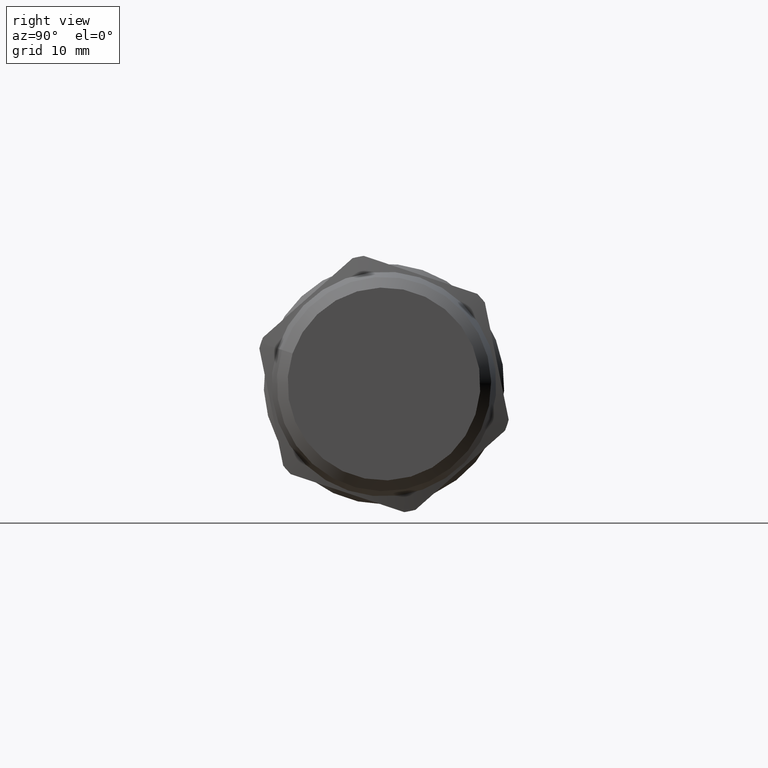
[diagram: clean part render]
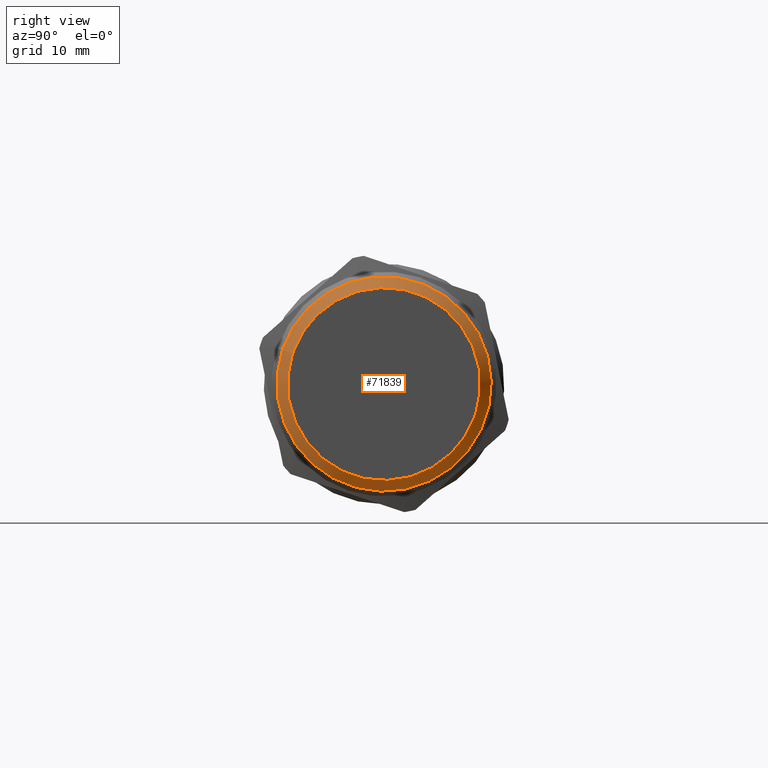
[diagram: same view with one face highlighted and labeled with its STEP entity id]
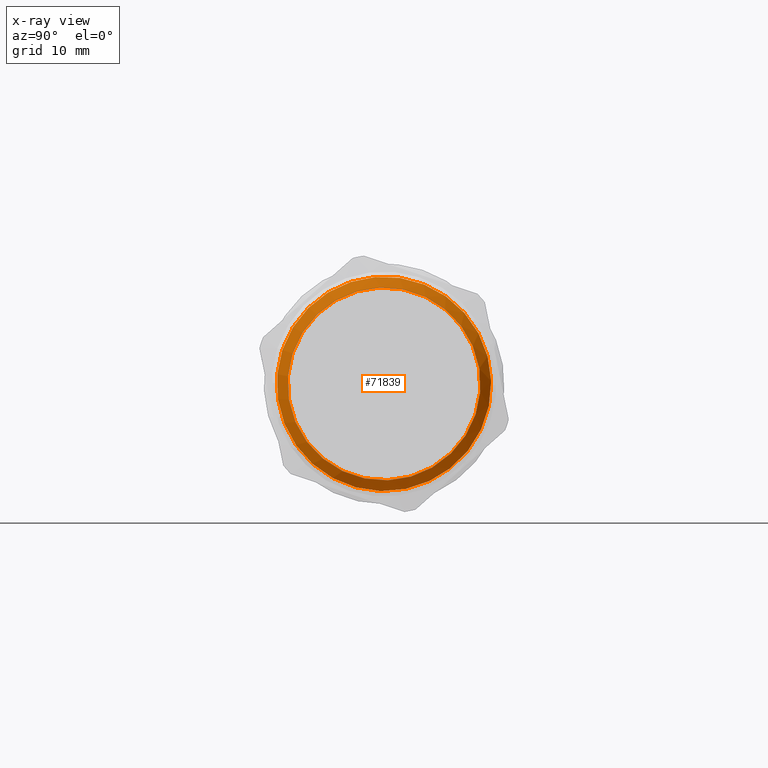
[diagram: x-ray of the same camera — body ghosted, the highlighted face saturated]
A machine part, right view. The second image highlights one B-rep face of the part: STEP entity #71839.
The next image is the same camera in x-ray: the body ghosted, the highlighted face saturated — about 0% of this face is hidden behind the body in this view.
In plain terms, the highlighted conical surface has half-angle 45.89 deg.
Its self-contained STEP definition (entity closure, byte-faithful):
#71812=CARTESIAN_POINT('',(60.500241268052264,-2.322279E-013,-2.633394E-014));
#71813=DIRECTION('',(-1.0,4.060326E-015,1.039656E-015));
#71814=DIRECTION('',(3.520458E-015,0.948301558621145,-0.317370688496445));
#71815=AXIS2_PLACEMENT_3D('',#71812,#71813,#71814);
#71816=CONICAL_SURFACE('',#71815,9.736109649004309,45.889999999999837);
#71817=CARTESIAN_POINT('',(60.000482536104514,-9.721646741183706,3.253570229342231));
#71818=VERTEX_POINT('',#71817);
#71819=CARTESIAN_POINT('',(60.000482536104549,-2.301987E-013,-2.581437E-014));
#71820=DIRECTION('',(1.0,-3.338455E-015,1.117290E-015));
#71821=DIRECTION('',(3.520458E-015,0.948301558621145,-0.317370688496445));
#71822=AXIS2_PLACEMENT_3D('',#71819,#71820,#71821);
#71823=CIRCLE('',#71822,10.251640580786351);
#71824=EDGE_CURVE('',#71818,#71818,#71823,.T.);
#71825=ORIENTED_EDGE('',*,*,#71824,.T.);
#71826=EDGE_LOOP('',(#71825));
#71827=FACE_OUTER_BOUND('',#71826,.T.);
#71828=CARTESIAN_POINT('',(60.999999999999943,-8.743889168931062,2.92634141582047));
#71829=VERTEX_POINT('',#71828);
#71830=CARTESIAN_POINT('',(60.999999999999979,-2.342571E-013,-2.685352E-014));
#71831=DIRECTION('',(-1.0,3.338455E-015,-1.117290E-015));
#71832=DIRECTION('',(3.520458E-015,0.948301558621145,-0.317370688496445));
#71833=AXIS2_PLACEMENT_3D('',#71830,#71831,#71832);
#71834=CIRCLE('',#71833,9.220578717222262);
#71835=EDGE_CURVE('',#71829,#71829,#71834,.T.);
#71836=ORIENTED_EDGE('',*,*,#71835,.T.);
#71837=EDGE_LOOP('',(#71836));
#71838=FACE_BOUND('',#71837,.T.);
#71839=ADVANCED_FACE('',(#71827,#71838),#71816,.T.);